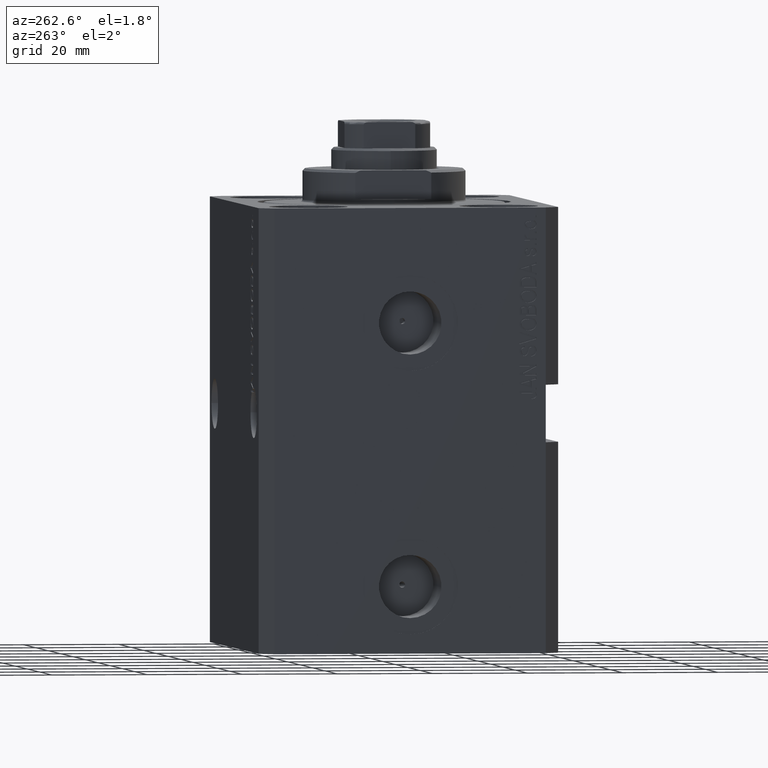
[diagram: clean part render]
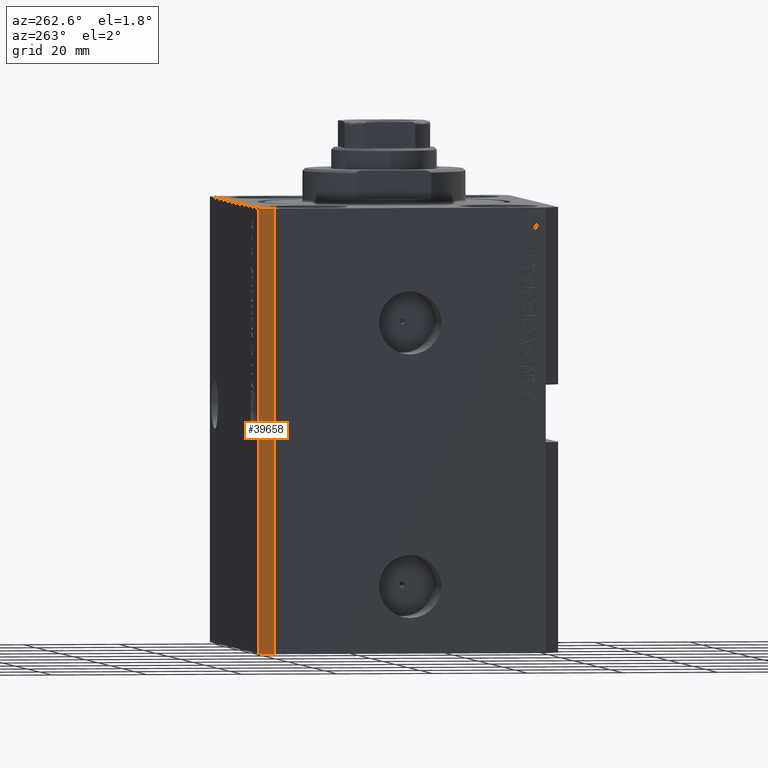
[diagram: same view with one face highlighted and labeled with its STEP entity id]
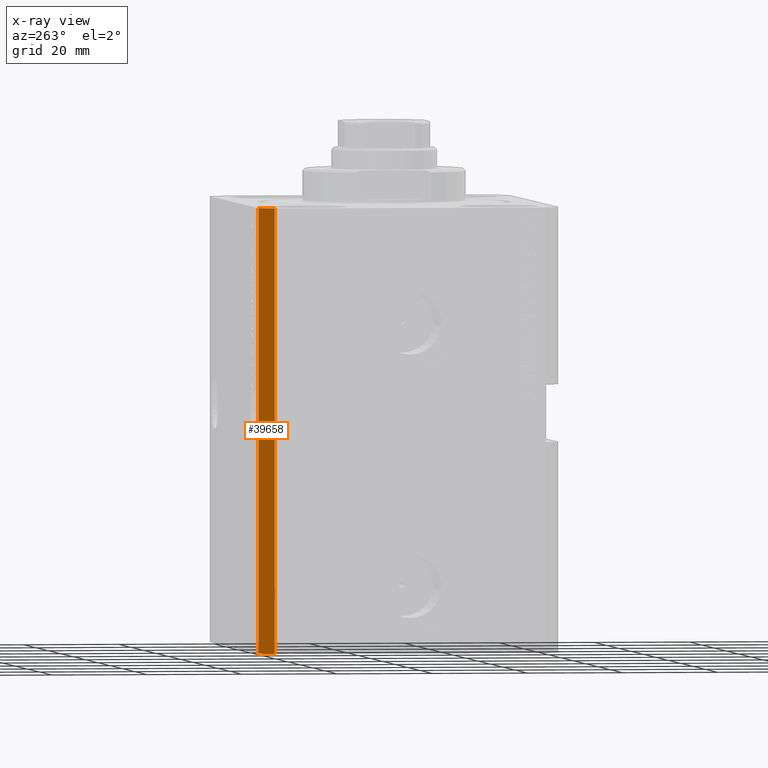
[diagram: x-ray of the same camera — body ghosted, the highlighted face saturated]
A machine part, auxiliary view. The second image highlights one B-rep face of the part: STEP entity #39658.
The next image is the same camera in x-ray: the body ghosted, the highlighted face saturated — about 0% of this face is hidden behind the body in this view.
In plain terms, the highlighted planar face has unit normal (-0.7071, 0.7071, 0).
Its self-contained STEP definition (entity closure, byte-faithful):
#2281 = VECTOR ( 'NONE', #32432, 1000.000000000000000 ) ;
#3770 = VERTEX_POINT ( 'NONE', #39224 ) ;
#3947 = VECTOR ( 'NONE', #34090, 1000.000000000000000 ) ;
#5323 = VECTOR ( 'NONE', #7382, 1000.000000000000000 ) ;
#6891 = LINE ( 'NONE', #26632, #3947 ) ;
#7382 = DIRECTION ( 'NONE',  ( -0.7071067811865471286, -0.7071067811865479058, 0.000000000000000000 ) ) ;
#7641 = AXIS2_PLACEMENT_3D ( 'NONE', #33842, #30663, #26819 ) ;
#8486 = VECTOR ( 'NONE', #23724, 1000.000000000000000 ) ;
#9324 = ORIENTED_EDGE ( 'NONE', *, *, #36264, .T. ) ;
#9372 = FACE_OUTER_BOUND ( 'NONE', #41103, .T. ) ;
#10873 = EDGE_CURVE ( 'NONE', #3770, #35935, #15203, .T. ) ;
#13292 = CARTESIAN_POINT ( 'NONE',  ( -39.50000000000000711, 31.50000000000000000, -93.00000000000000000 ) ) ;
#14987 = CARTESIAN_POINT ( 'NONE',  ( -39.50000000000000711, 31.50000000000000000, 0.000000000000000000 ) ) ;
#15203 = LINE ( 'NONE', #14987, #2281 ) ;
#16179 = PLANE ( 'NONE',  #7641 ) ;
#23724 = DIRECTION ( 'NONE',  ( 0.000000000000000000, 0.000000000000000000, 1.000000000000000000 ) ) ;
#24489 = VERTEX_POINT ( 'NONE', #31924 ) ;
#24950 = ORIENTED_EDGE ( 'NONE', *, *, #10873, .F. ) ;
#26632 = CARTESIAN_POINT ( 'NONE',  ( -42.50000000000000000, 28.50000000000000000, -93.00000000000000000 ) ) ;
#26819 = DIRECTION ( 'NONE',  ( -0.7071067811865471286, -0.7071067811865479058, 0.000000000000000000 ) ) ;
#28747 = VERTEX_POINT ( 'NONE', #32028 ) ;
#29602 = ORIENTED_EDGE ( 'NONE', *, *, #34507, .T. ) ;
#30663 = DIRECTION ( 'NONE',  ( -0.7071067811865479058, 0.7071067811865471286, 0.000000000000000000 ) ) ;
#31412 = CARTESIAN_POINT ( 'NONE',  ( -39.50000000000000711, 31.50000000000000000, -93.00000000000000000 ) ) ;
#31924 = CARTESIAN_POINT ( 'NONE',  ( -39.50000000000000711, 31.50000000000000000, -93.00000000000000000 ) ) ;
#32028 = CARTESIAN_POINT ( 'NONE',  ( -42.50000000000000000, 28.50000000000000000, -93.00000000000000000 ) ) ;
#32432 = DIRECTION ( 'NONE',  ( -0.7071067811865471286, -0.7071067811865479058, 0.000000000000000000 ) ) ;
#33842 = CARTESIAN_POINT ( 'NONE',  ( -39.50000000000000711, 31.50000000000000000, -93.00000000000000000 ) ) ;
#34090 = DIRECTION ( 'NONE',  ( 0.000000000000000000, 0.000000000000000000, 1.000000000000000000 ) ) ;
#34507 = EDGE_CURVE ( 'NONE', #24489, #28747, #38435, .T. ) ;
#35935 = VERTEX_POINT ( 'NONE', #37322 ) ;
#36264 = EDGE_CURVE ( 'NONE', #28747, #35935, #6891, .T. ) ;
#37322 = CARTESIAN_POINT ( 'NONE',  ( -42.50000000000000000, 28.50000000000000000, 0.000000000000000000 ) ) ;
#38435 = LINE ( 'NONE', #31412, #5323 ) ;
#39224 = CARTESIAN_POINT ( 'NONE',  ( -39.50000000000000711, 31.50000000000000000, 0.000000000000000000 ) ) ;
#39658 = ADVANCED_FACE ( 'NONE', ( #9372 ), #16179, .T. ) ;
#41103 = EDGE_LOOP ( 'NONE', ( #24950, #44602, #29602, #9324 ) ) ;
#42704 = EDGE_CURVE ( 'NONE', #24489, #3770, #44357, .T. ) ;
#44357 = LINE ( 'NONE', #13292, #8486 ) ;
#44602 = ORIENTED_EDGE ( 'NONE', *, *, #42704, .F. ) ;